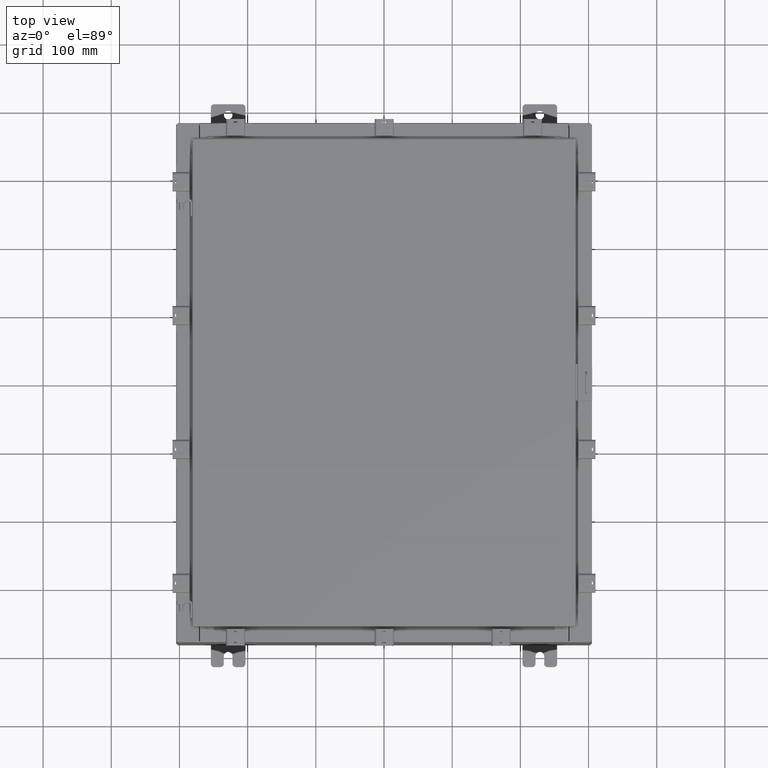
[diagram: clean part render]
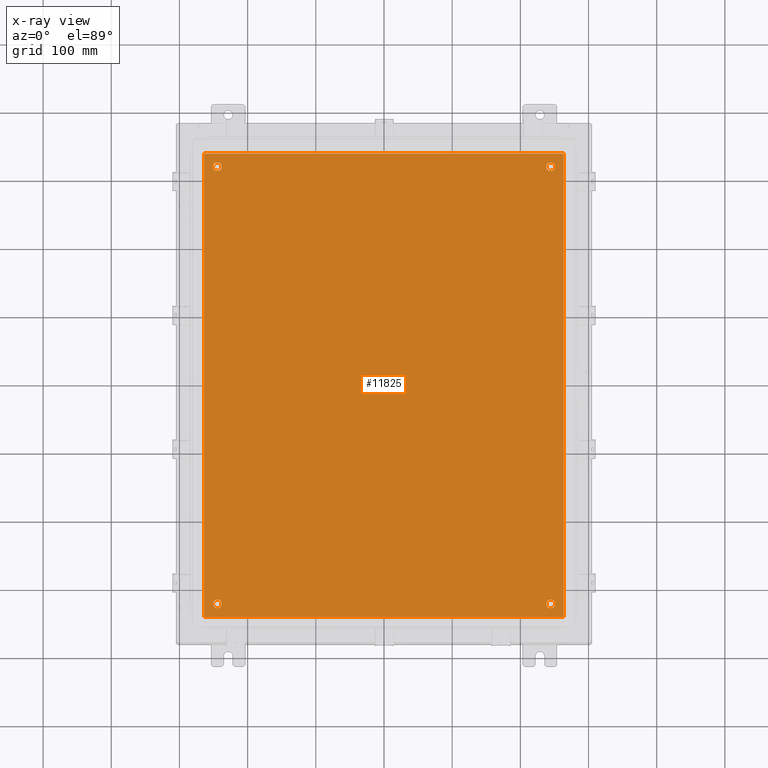
[diagram: x-ray — body ghosted, one internal face saturated and labeled with its STEP entity id]
A machine part, top view, then the same camera in x-ray: the body is ghosted and one INTERNAL B-rep face — a face not visible from any outside direction — is saturated and labeled: STEP entity #11825.
In plain terms, the highlighted planar face has unit normal (0, 0, -1).
Its self-contained STEP definition (entity closure, byte-faithful):
#115 = VERTEX_POINT ( 'NONE', #7490 ) ;
#228 = CARTESIAN_POINT ( 'NONE',  ( 0.0000000000000000000, 0.0000000000000000000, -0.1039999999999999800 ) ) ;
#327 = VERTEX_POINT ( 'NONE', #8016 ) ;
#463 = CIRCLE ( 'NONE', #22614, 0.2499999999999998100 ) ;
#834 = DIRECTION ( 'NONE',  ( -1.000000000000000000, 0.0000000000000000000, 0.0000000000000000000 ) ) ;
#867 = ORIENTED_EDGE ( 'NONE', *, *, #19242, .T. ) ;
#1312 = AXIS2_PLACEMENT_3D ( 'NONE', #15860, #5183, #17680 ) ;
#1484 = CARTESIAN_POINT ( 'NONE',  ( 9.875000000000007100, -12.62500000000000000, -0.1039999999999999800 ) ) ;
#1603 = VECTOR ( 'NONE', #19621, 39.37007874015748100 ) ;
#1647 = DIRECTION ( 'NONE',  ( -1.000000000000000000, 0.0000000000000000000, 0.0000000000000000000 ) ) ;
#1967 = AXIS2_PLACEMENT_3D ( 'NONE', #20126, #9383, #21889 ) ;
#2011 = DIRECTION ( 'NONE',  ( -1.000000000000000000, 0.0000000000000000000, -0.0000000000000000000 ) ) ;
#2061 = ORIENTED_EDGE ( 'NONE', *, *, #3910, .T. ) ;
#2334 = DIRECTION ( 'NONE',  ( 0.0000000000000000000, -1.000000000000000000, 0.0000000000000000000 ) ) ;
#2687 = CIRCLE ( 'NONE', #16624, 0.2499999999999998100 ) ;
#2690 = FACE_BOUND ( 'NONE', #11397, .T. ) ;
#3299 = DIRECTION ( 'NONE',  ( -0.0000000000000000000, -0.0000000000000000000, 1.000000000000000000 ) ) ;
#3321 = CARTESIAN_POINT ( 'NONE',  ( 10.38300000000000100, -13.38299999999999700, -0.1040000000000009100 ) ) ;
#3594 = CIRCLE ( 'NONE', #1312, 0.2500000000000008900 ) ;
#3693 = VERTEX_POINT ( 'NONE', #3321 ) ;
#3729 = CARTESIAN_POINT ( 'NONE',  ( -9.625000000000007100, -12.62500000000000000, -0.1039999999999999800 ) ) ;
#3910 = EDGE_CURVE ( 'NONE', #15389, #5548, #21637, .T. ) ;
#4630 = CARTESIAN_POINT ( 'NONE',  ( 9.375000000000007100, 12.62500000000000000, -0.1039999999999999800 ) ) ;
#5183 = DIRECTION ( 'NONE',  ( -0.0000000000000000000, -0.0000000000000000000, 1.000000000000000000 ) ) ;
#5197 = VECTOR ( 'NONE', #15949, 39.37007874015748100 ) ;
#5531 = DIRECTION ( 'NONE',  ( -1.000000000000000000, 0.0000000000000000000, 0.0000000000000000000 ) ) ;
#5548 = VERTEX_POINT ( 'NONE', #13127 ) ;
#5602 = ORIENTED_EDGE ( 'NONE', *, *, #17357, .T. ) ;
#7089 = EDGE_CURVE ( 'NONE', #7896, #3693, #14697, .T. ) ;
#7235 = VERTEX_POINT ( 'NONE', #18095 ) ;
#7392 = EDGE_LOOP ( 'NONE', ( #19360, #17225, #12662, #8554 ) ) ;
#7490 = CARTESIAN_POINT ( 'NONE',  ( -10.38300000000000100, 13.38299999999999700, -0.1040000000000020100 ) ) ;
#7516 = AXIS2_PLACEMENT_3D ( 'NONE', #13989, #3299, #15757 ) ;
#7812 = VERTEX_POINT ( 'NONE', #1484 ) ;
#7896 = VERTEX_POINT ( 'NONE', #12447 ) ;
#8016 = CARTESIAN_POINT ( 'NONE',  ( 10.38300000000000100, 13.38299999999999700, -0.1040000000000009100 ) ) ;
#8159 = EDGE_LOOP ( 'NONE', ( #867, #8388 ) ) ;
#8388 = ORIENTED_EDGE ( 'NONE', *, *, #22916, .T. ) ;
#8554 = ORIENTED_EDGE ( 'NONE', *, *, #10385, .F. ) ;
#8563 = DIRECTION ( 'NONE',  ( -0.0000000000000000000, -0.0000000000000000000, 1.000000000000000000 ) ) ;
#8721 = EDGE_CURVE ( 'NONE', #115, #7896, #17606, .T. ) ;
#8746 = ORIENTED_EDGE ( 'NONE', *, *, #22666, .T. ) ;
#9293 = EDGE_CURVE ( 'NONE', #12931, #7235, #17587, .T. ) ;
#9383 = DIRECTION ( 'NONE',  ( -0.0000000000000000000, -0.0000000000000000000, 1.000000000000000000 ) ) ;
#9456 = CARTESIAN_POINT ( 'NONE',  ( -10.38300000000000100, 13.38299999999999700, -0.1040000000000020100 ) ) ;
#9632 = EDGE_CURVE ( 'NONE', #7235, #12931, #11990, .T. ) ;
#10048 = AXIS2_PLACEMENT_3D ( 'NONE', #228, #12756, #2011 ) ;
#10274 = DIRECTION ( 'NONE',  ( 0.0000000000000000000, 1.000000000000000000, 0.0000000000000000000 ) ) ;
#10304 = CARTESIAN_POINT ( 'NONE',  ( -9.625000000000007100, -12.62500000000000000, -0.1039999999999999800 ) ) ;
#10385 = EDGE_CURVE ( 'NONE', #3693, #327, #22839, .T. ) ;
#10693 = CARTESIAN_POINT ( 'NONE',  ( 10.50000000000000400, 13.38299999999999900, -0.1040000000000009100 ) ) ;
#11397 = EDGE_LOOP ( 'NONE', ( #17529, #2061 ) ) ;
#11566 = DIRECTION ( 'NONE',  ( -0.0000000000000000000, -0.0000000000000000000, 1.000000000000000000 ) ) ;
#11656 = FACE_OUTER_BOUND ( 'NONE', #7392, .T. ) ;
#11825 = ADVANCED_FACE ( 'NONE', ( #21165, #12212, #2690, #16384, #11656 ), #19882, .T. ) ;
#11990 = CIRCLE ( 'NONE', #19607, 0.2500000000000008900 ) ;
#12084 = DIRECTION ( 'NONE',  ( -1.000000000000000000, 0.0000000000000000000, 0.0000000000000000000 ) ) ;
#12212 = FACE_BOUND ( 'NONE', #8159, .T. ) ;
#12356 = DIRECTION ( 'NONE',  ( -0.0000000000000000000, -0.0000000000000000000, 1.000000000000000000 ) ) ;
#12386 = CARTESIAN_POINT ( 'NONE',  ( -10.50000000000000200, -13.38299999999999900, -0.1040000000000009100 ) ) ;
#12447 = CARTESIAN_POINT ( 'NONE',  ( -10.38300000000000100, -13.38299999999999900, -0.1040000000000009100 ) ) ;
#12636 = EDGE_CURVE ( 'NONE', #5548, #15389, #14158, .T. ) ;
#12662 = ORIENTED_EDGE ( 'NONE', *, *, #21910, .F. ) ;
#12756 = DIRECTION ( 'NONE',  ( 0.0000000000000000000, 0.0000000000000000000, -1.000000000000000000 ) ) ;
#12866 = VECTOR ( 'NONE', #2334, 39.37007874015748100 ) ;
#12931 = VERTEX_POINT ( 'NONE', #20013 ) ;
#13127 = CARTESIAN_POINT ( 'NONE',  ( 9.875000000000007100, 12.62500000000000000, -0.1039999999999999800 ) ) ;
#13989 = CARTESIAN_POINT ( 'NONE',  ( -9.625000000000007100, 12.62500000000000000, -0.1039999999999999800 ) ) ;
#14026 = AXIS2_PLACEMENT_3D ( 'NONE', #3729, #16211, #5531 ) ;
#14158 = CIRCLE ( 'NONE', #22337, 0.2499999999999998100 ) ;
#14697 = LINE ( 'NONE', #12386, #5197 ) ;
#14870 = ORIENTED_EDGE ( 'NONE', *, *, #9632, .T. ) ;
#15253 = VERTEX_POINT ( 'NONE', #20279 ) ;
#15291 = LINE ( 'NONE', #10693, #1603 ) ;
#15389 = VERTEX_POINT ( 'NONE', #4630 ) ;
#15757 = DIRECTION ( 'NONE',  ( -1.000000000000000000, 0.0000000000000000000, 0.0000000000000000000 ) ) ;
#15860 = CARTESIAN_POINT ( 'NONE',  ( -9.625000000000007100, 12.62500000000000000, -0.1039999999999999800 ) ) ;
#15949 = DIRECTION ( 'NONE',  ( 1.000000000000000000, -0.0000000000000000000, -0.0000000000000000000 ) ) ;
#16103 = CIRCLE ( 'NONE', #7516, 0.2500000000000008900 ) ;
#16211 = DIRECTION ( 'NONE',  ( -0.0000000000000000000, -0.0000000000000000000, 1.000000000000000000 ) ) ;
#16384 = FACE_BOUND ( 'NONE', #20552, .T. ) ;
#16624 = AXIS2_PLACEMENT_3D ( 'NONE', #22275, #11566, #834 ) ;
#17225 = ORIENTED_EDGE ( 'NONE', *, *, #8721, .F. ) ;
#17357 = EDGE_CURVE ( 'NONE', #22774, #15253, #3594, .T. ) ;
#17391 = ORIENTED_EDGE ( 'NONE', *, *, #9293, .T. ) ;
#17529 = ORIENTED_EDGE ( 'NONE', *, *, #12636, .T. ) ;
#17587 = CIRCLE ( 'NONE', #14026, 0.2500000000000008900 ) ;
#17606 = LINE ( 'NONE', #9456, #12866 ) ;
#17680 = DIRECTION ( 'NONE',  ( -1.000000000000000000, 0.0000000000000000000, 0.0000000000000000000 ) ) ;
#18095 = CARTESIAN_POINT ( 'NONE',  ( -9.375000000000007100, -12.62500000000000000, -0.1039999999999999800 ) ) ;
#18261 = CARTESIAN_POINT ( 'NONE',  ( 9.375000000000007100, -12.62500000000000000, -0.1039999999999999800 ) ) ;
#18281 = VERTEX_POINT ( 'NONE', #18261 ) ;
#19098 = EDGE_LOOP ( 'NONE', ( #14870, #17391 ) ) ;
#19181 = CARTESIAN_POINT ( 'NONE',  ( 10.38300000000000100, -13.38299999999999700, -0.1040000000000009100 ) ) ;
#19242 = EDGE_CURVE ( 'NONE', #7812, #18281, #463, .T. ) ;
#19277 = CARTESIAN_POINT ( 'NONE',  ( 9.625000000000007100, 12.62500000000000000, -0.1039999999999999800 ) ) ;
#19360 = ORIENTED_EDGE ( 'NONE', *, *, #7089, .F. ) ;
#19607 = AXIS2_PLACEMENT_3D ( 'NONE', #10304, #22780, #12084 ) ;
#19621 = DIRECTION ( 'NONE',  ( -1.000000000000000000, -0.0000000000000000000, -0.0000000000000000000 ) ) ;
#19882 = PLANE ( 'NONE',  #10048 ) ;
#20013 = CARTESIAN_POINT ( 'NONE',  ( -9.875000000000007100, -12.62500000000000000, -0.1039999999999999800 ) ) ;
#20117 = CARTESIAN_POINT ( 'NONE',  ( -9.875000000000007100, 12.62500000000000000, -0.1039999999999999800 ) ) ;
#20126 = CARTESIAN_POINT ( 'NONE',  ( 9.625000000000007100, 12.62500000000000000, -0.1039999999999999800 ) ) ;
#20279 = CARTESIAN_POINT ( 'NONE',  ( -9.375000000000007100, 12.62500000000000000, -0.1039999999999999800 ) ) ;
#20552 = EDGE_LOOP ( 'NONE', ( #8746, #5602 ) ) ;
#21053 = DIRECTION ( 'NONE',  ( -1.000000000000000000, 0.0000000000000000000, 0.0000000000000000000 ) ) ;
#21165 = FACE_BOUND ( 'NONE', #19098, .T. ) ;
#21637 = CIRCLE ( 'NONE', #1967, 0.2499999999999998100 ) ;
#21889 = DIRECTION ( 'NONE',  ( -1.000000000000000000, 0.0000000000000000000, 0.0000000000000000000 ) ) ;
#21910 = EDGE_CURVE ( 'NONE', #327, #115, #15291, .T. ) ;
#22275 = CARTESIAN_POINT ( 'NONE',  ( 9.625000000000007100, -12.62500000000000000, -0.1039999999999999800 ) ) ;
#22294 = VECTOR ( 'NONE', #10274, 39.37007874015748100 ) ;
#22337 = AXIS2_PLACEMENT_3D ( 'NONE', #19277, #8563, #21053 ) ;
#22614 = AXIS2_PLACEMENT_3D ( 'NONE', #23051, #12356, #1647 ) ;
#22666 = EDGE_CURVE ( 'NONE', #15253, #22774, #16103, .T. ) ;
#22774 = VERTEX_POINT ( 'NONE', #20117 ) ;
#22780 = DIRECTION ( 'NONE',  ( -0.0000000000000000000, -0.0000000000000000000, 1.000000000000000000 ) ) ;
#22839 = LINE ( 'NONE', #19181, #22294 ) ;
#22916 = EDGE_CURVE ( 'NONE', #18281, #7812, #2687, .T. ) ;
#23051 = CARTESIAN_POINT ( 'NONE',  ( 9.625000000000007100, -12.62500000000000000, -0.1039999999999999800 ) ) ;